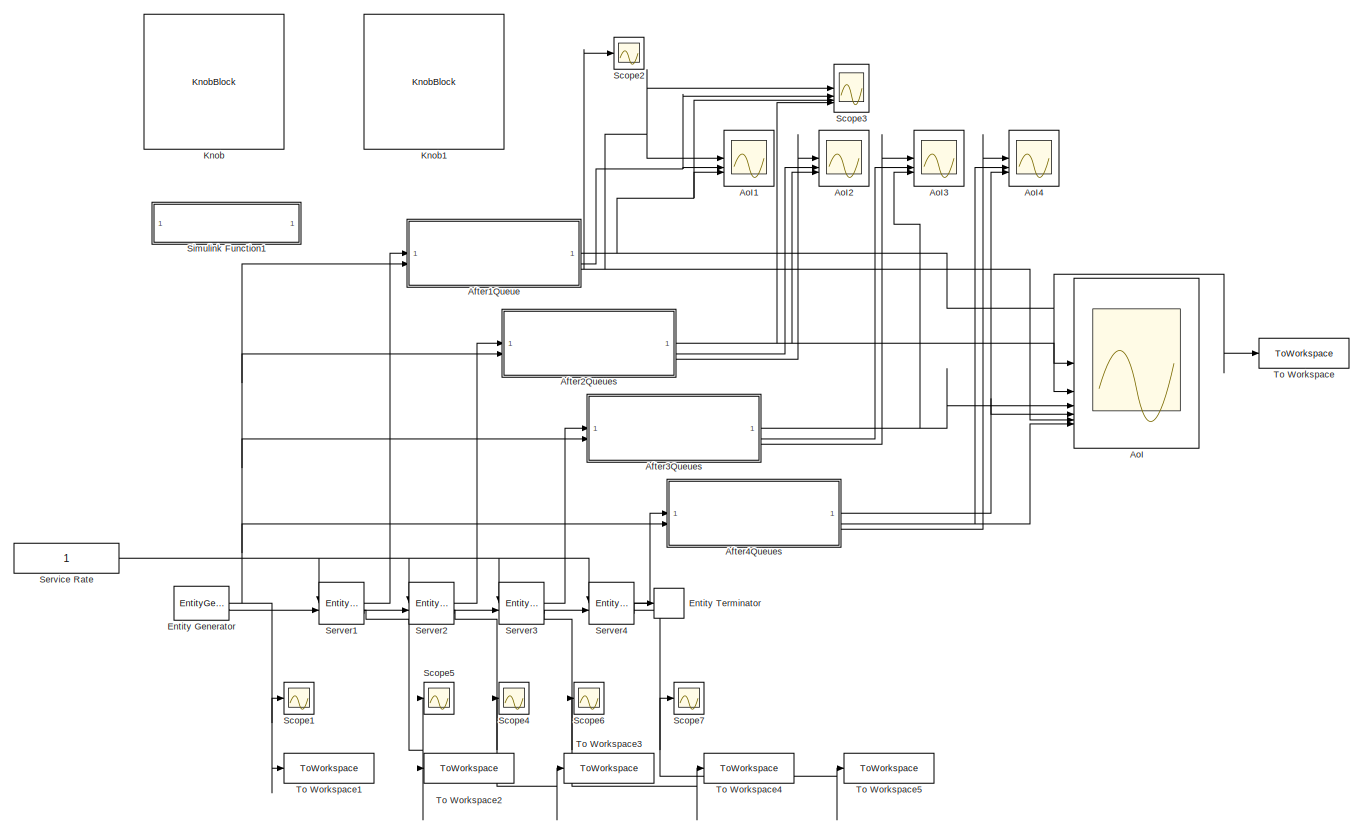
[diagram: root canvas - part 1/2, most of the canvas]
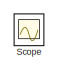
[diagram: root canvas - part 2/2, middle left region]
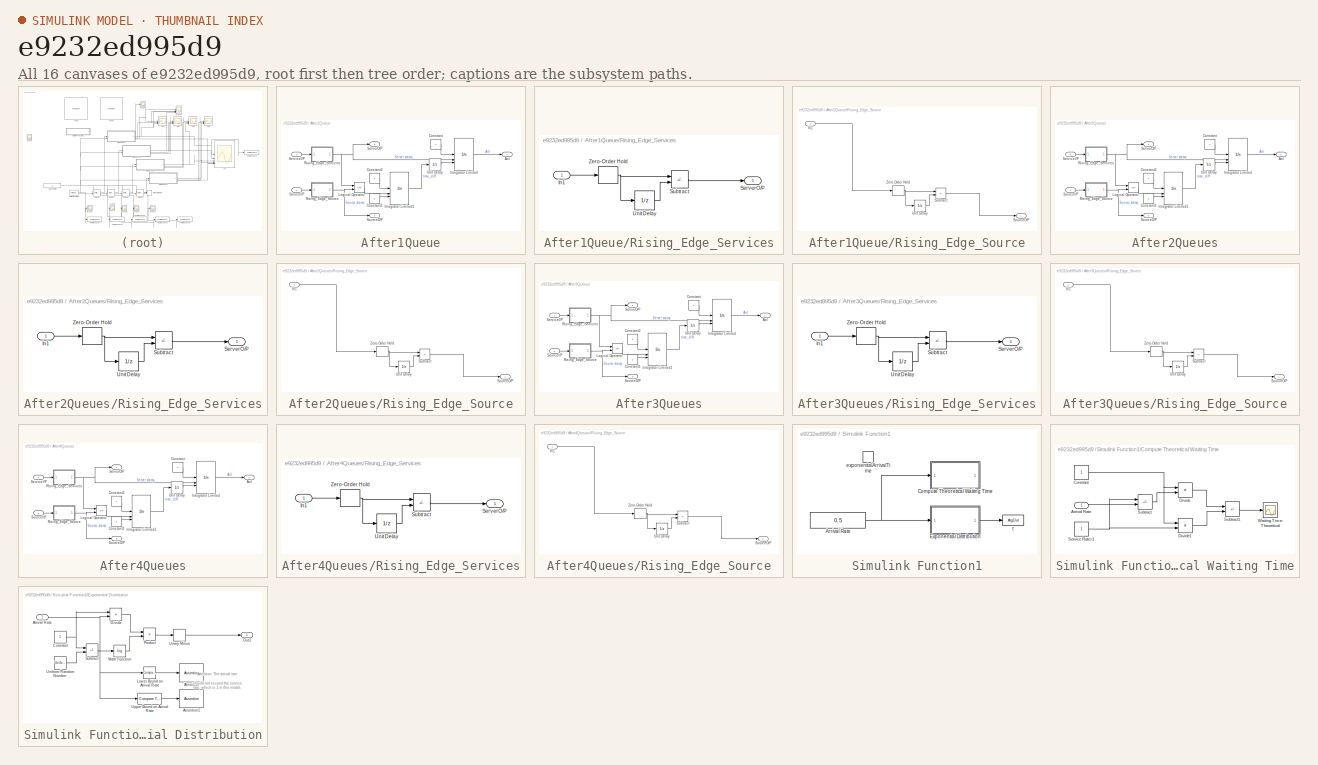
[diagram: thumbnail index - all 16 canvases of the model, root first then tree order]
MODEL slx_e9232ed995d9
KIND model
CONFIG AbsTol = auto
CONFIG EnableMultiTasking = off
CONFIG FixedStep = auto
CONFIG MaxStep = auto
CONFIG MinStep = auto
CONFIG RelTol = 1e-3
CONFIG SampleTimeConstraint = Unconstrained
CONFIG SolverName = VariableStepAuto
CONFIG StartTime = 0.0
CONFIG StopTime = 100
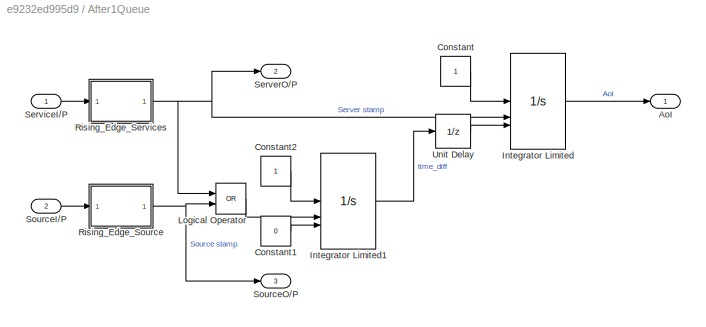
BLOCK [SubSystem] After1Queue
BLOCK [Outport] After1Queue/AoI
BLOCK [Constant] After1Queue/Constant
BLOCK [Constant] After1Queue/Constant1
  Value = 0
BLOCK [Constant] After1Queue/Constant2
BLOCK [Integrator] After1Queue/Integrator Limited
  ExternalReset = rising
  InitialConditionSource = external
  LimitOutput = on
  LowerSaturationLimit = 0
  UpperSaturationLimit = 1000
BLOCK [Integrator] After1Queue/Integrator Limited1
  ExternalReset = rising
  InitialConditionSource = external
  LimitOutput = on
  LowerSaturationLimit = 0
  UpperSaturationLimit = 1000
BLOCK [Logic] After1Queue/Logical Operator
  AllPortsSameDT = off
  Operator = OR
  OutDataTypeStr = boolean
BLOCK [SubSystem] After1Queue/Rising_Edge_Services
BLOCK [Inport] After1Queue/Rising_Edge_Services/In1
BLOCK [Outport] After1Queue/Rising_Edge_Services/ServerO//P
  VectorParamsAs1DForOutWhenUnconnected = off
BLOCK [Sum] After1Queue/Rising_Edge_Services/Subtract
  IconShape = rectangular
  Inputs = +-
BLOCK [UnitDelay] After1Queue/Rising_Edge_Services/Unit Delay
  HasFrameUpgradeWarning = on
  SampleTime = -1
BLOCK [ZeroOrderHold] After1Queue/Rising_Edge_Services/Zero-Order Hold
  SampleTime = 0.005
BLOCK [SubSystem] After1Queue/Rising_Edge_Source
BLOCK [Inport] After1Queue/Rising_Edge_Source/In1
BLOCK [Outport] After1Queue/Rising_Edge_Source/SourceO//P
  VectorParamsAs1DForOutWhenUnconnected = off
BLOCK [Sum] After1Queue/Rising_Edge_Source/Subtract
  IconShape = rectangular
  Inputs = +-
BLOCK [UnitDelay] After1Queue/Rising_Edge_Source/Unit Delay
  HasFrameUpgradeWarning = on
  SampleTime = -1
BLOCK [ZeroOrderHold] After1Queue/Rising_Edge_Source/Zero-Order Hold
  SampleTime = 0.005
BLOCK [Outport] After1Queue/ServerO//P
  Port = 2
BLOCK [Inport] After1Queue/ServiceI//P
BLOCK [Inport] After1Queue/SourceI//P
  Port = 2
BLOCK [Outport] After1Queue/SourceO//P
  Port = 3
BLOCK [UnitDelay] After1Queue/Unit Delay
  HasFrameUpgradeWarning = on
  SampleTime = -1
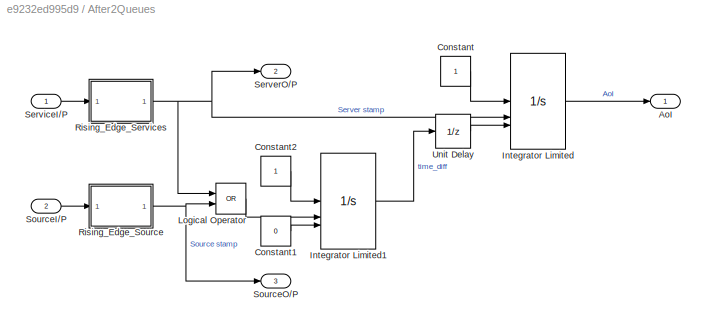
BLOCK [SubSystem] After2Queues
BLOCK [Outport] After2Queues/AoI
BLOCK [Constant] After2Queues/Constant
BLOCK [Constant] After2Queues/Constant1
  Value = 0
BLOCK [Constant] After2Queues/Constant2
BLOCK [Integrator] After2Queues/Integrator Limited
  ExternalReset = rising
  InitialConditionSource = external
  LimitOutput = on
  LowerSaturationLimit = 0
  UpperSaturationLimit = 1000
BLOCK [Integrator] After2Queues/Integrator Limited1
  ExternalReset = rising
  InitialConditionSource = external
  LimitOutput = on
  LowerSaturationLimit = 0
  UpperSaturationLimit = 1000
BLOCK [Logic] After2Queues/Logical Operator
  AllPortsSameDT = off
  Operator = OR
  OutDataTypeStr = boolean
BLOCK [SubSystem] After2Queues/Rising_Edge_Services
BLOCK [Inport] After2Queues/Rising_Edge_Services/In1
BLOCK [Outport] After2Queues/Rising_Edge_Services/ServerO//P
  VectorParamsAs1DForOutWhenUnconnected = off
BLOCK [Sum] After2Queues/Rising_Edge_Services/Subtract
  IconShape = rectangular
  Inputs = +-
BLOCK [UnitDelay] After2Queues/Rising_Edge_Services/Unit Delay
  HasFrameUpgradeWarning = on
  SampleTime = -1
BLOCK [ZeroOrderHold] After2Queues/Rising_Edge_Services/Zero-Order Hold
  SampleTime = 0.005
BLOCK [SubSystem] After2Queues/Rising_Edge_Source
BLOCK [Inport] After2Queues/Rising_Edge_Source/In1
BLOCK [Outport] After2Queues/Rising_Edge_Source/SourceO//P
  VectorParamsAs1DForOutWhenUnconnected = off
BLOCK [Sum] After2Queues/Rising_Edge_Source/Subtract
  IconShape = rectangular
  Inputs = +-
BLOCK [UnitDelay] After2Queues/Rising_Edge_Source/Unit Delay
  HasFrameUpgradeWarning = on
  SampleTime = -1
BLOCK [ZeroOrderHold] After2Queues/Rising_Edge_Source/Zero-Order Hold
  SampleTime = 0.005
BLOCK [Outport] After2Queues/ServerO//P
  Port = 2
BLOCK [Inport] After2Queues/ServiceI//P
BLOCK [Inport] After2Queues/SourceI//P
  Port = 2
BLOCK [Outport] After2Queues/SourceO//P
  Port = 3
BLOCK [UnitDelay] After2Queues/Unit Delay
  HasFrameUpgradeWarning = on
  SampleTime = -1
BLOCK [SubSystem] After3Queues
BLOCK [Outport] After3Queues/AoI
BLOCK [Constant] After3Queues/Constant
BLOCK [Constant] After3Queues/Constant1
  Value = 0
BLOCK [Constant] After3Queues/Constant2
BLOCK [Integrator] After3Queues/Integrator Limited
  ExternalReset = rising
  InitialConditionSource = external
  LimitOutput = on
  LowerSaturationLimit = 0
  UpperSaturationLimit = 1000
BLOCK [Integrator] After3Queues/Integrator Limited1
  ExternalReset = rising
  InitialConditionSource = external
  LimitOutput = on
  LowerSaturationLimit = 0
  UpperSaturationLimit = 1000
BLOCK [Logic] After3Queues/Logical Operator
  AllPortsSameDT = off
  Operator = OR
  OutDataTypeStr = boolean
BLOCK [SubSystem] After3Queues/Rising_Edge_Services
BLOCK [Inport] After3Queues/Rising_Edge_Services/In1
BLOCK [Outport] After3Queues/Rising_Edge_Services/ServerO//P
  VectorParamsAs1DForOutWhenUnconnected = off
BLOCK [Sum] After3Queues/Rising_Edge_Services/Subtract
  IconShape = rectangular
  Inputs = +-
BLOCK [UnitDelay] After3Queues/Rising_Edge_Services/Unit Delay
  HasFrameUpgradeWarning = on
  SampleTime = -1
BLOCK [ZeroOrderHold] After3Queues/Rising_Edge_Services/Zero-Order Hold
  SampleTime = 0.005
BLOCK [SubSystem] After3Queues/Rising_Edge_Source
BLOCK [Inport] After3Queues/Rising_Edge_Source/In1
BLOCK [Outport] After3Queues/Rising_Edge_Source/SourceO//P
  VectorParamsAs1DForOutWhenUnconnected = off
BLOCK [Sum] After3Queues/Rising_Edge_Source/Subtract
  IconShape = rectangular
  Inputs = +-
BLOCK [UnitDelay] After3Queues/Rising_Edge_Source/Unit Delay
  HasFrameUpgradeWarning = on
  SampleTime = -1
BLOCK [ZeroOrderHold] After3Queues/Rising_Edge_Source/Zero-Order Hold
  SampleTime = 0.005
BLOCK [Outport] After3Queues/ServerO//P
  Port = 2
BLOCK [Inport] After3Queues/ServiceI//P
BLOCK [Inport] After3Queues/SourceI//P
  Port = 2
BLOCK [Outport] After3Queues/SourceO//P
  Port = 3
BLOCK [UnitDelay] After3Queues/Unit Delay
  HasFrameUpgradeWarning = on
  SampleTime = -1
BLOCK [SubSystem] After4Queues
BLOCK [Outport] After4Queues/AoI
BLOCK [Constant] After4Queues/Constant
BLOCK [Constant] After4Queues/Constant1
  Value = 0
BLOCK [Constant] After4Queues/Constant2
BLOCK [Integrator] After4Queues/Integrator Limited
  ExternalReset = rising
  InitialConditionSource = external
  LimitOutput = on
  LowerSaturationLimit = 0
  UpperSaturationLimit = 1000
BLOCK [Integrator] After4Queues/Integrator Limited1
  ExternalReset = rising
  InitialConditionSource = external
  LimitOutput = on
  LowerSaturationLimit = 0
  UpperSaturationLimit = 1000
BLOCK [Logic] After4Queues/Logical Operator
  AllPortsSameDT = off
  Operator = OR
  OutDataTypeStr = boolean
BLOCK [SubSystem] After4Queues/Rising_Edge_Services
BLOCK [Inport] After4Queues/Rising_Edge_Services/In1
BLOCK [Outport] After4Queues/Rising_Edge_Services/ServerO//P
  VectorParamsAs1DForOutWhenUnconnected = off
BLOCK [Sum] After4Queues/Rising_Edge_Services/Subtract
  IconShape = rectangular
  Inputs = +-
BLOCK [UnitDelay] After4Queues/Rising_Edge_Services/Unit Delay
  HasFrameUpgradeWarning = on
  SampleTime = -1
BLOCK [ZeroOrderHold] After4Queues/Rising_Edge_Services/Zero-Order Hold
  SampleTime = 0.005
BLOCK [SubSystem] After4Queues/Rising_Edge_Source
BLOCK [Inport] After4Queues/Rising_Edge_Source/In1
BLOCK [Outport] After4Queues/Rising_Edge_Source/SourceO//P
  VectorParamsAs1DForOutWhenUnconnected = off
BLOCK [Sum] After4Queues/Rising_Edge_Source/Subtract
  IconShape = rectangular
  Inputs = +-
BLOCK [UnitDelay] After4Queues/Rising_Edge_Source/Unit Delay
  HasFrameUpgradeWarning = on
  SampleTime = -1
BLOCK [ZeroOrderHold] After4Queues/Rising_Edge_Source/Zero-Order Hold
  SampleTime = 0.005
BLOCK [Outport] After4Queues/ServerO//P
  Port = 2
BLOCK [Inport] After4Queues/ServiceI//P
BLOCK [Inport] After4Queues/SourceI//P
  Port = 2
BLOCK [Outport] After4Queues/SourceO//P
  Port = 3
BLOCK [UnitDelay] After4Queues/Unit Delay
  HasFrameUpgradeWarning = on
  SampleTime = -1
BLOCK [Scope] AoI
  Floating = off
  NumInputPorts = 6
  ScopeSpecificationString = Simulink.scopes.TimeScopeBlockCfg('CurrentConfiguration', extmgr.ConfigurationSet(extmgr.Configuration('Core','General UI',true,'ShowStatusbar',false),extmgr.Configuration('Core','Source UI',true),extmgr.Configuration('Sources','WiredSimulink',true,'DataLoggingVariableName','ScopeData1'),extmgr.Configuration('Visuals','Time Domain',true,'SerializedDisplays',{struct('MinYLimReal','-1.31074','MaxYLi...<+2108ch>
BLOCK [Scope] AoI1
  Floating = off
  NumInputPorts = 3
  ScopeSpecificationString = Simulink.scopes.TimeScopeBlockCfg('CurrentConfiguration', extmgr.ConfigurationSet(extmgr.Configuration('Core','General UI',true,'ShowStatusbar',false),extmgr.Configuration('Core','Source UI',true),extmgr.Configuration('Sources','WiredSimulink',true,'DataLoggingVariableName','ScopeData2'),extmgr.Configuration('Visuals','Time Domain',true,'SerializedDisplays',{struct('MinYLimReal','-2.32078','MaxYLi...<+1647ch>
BLOCK [Scope] AoI2
  Floating = off
  NumInputPorts = 3
  ScopeSpecificationString = Simulink.scopes.TimeScopeBlockCfg('CurrentConfiguration', extmgr.ConfigurationSet(extmgr.Configuration('Core','General UI',true,'ShowStatusbar',false),extmgr.Configuration('Core','Source UI',true),extmgr.Configuration('Sources','WiredSimulink',true,'DataLoggingVariableName','ScopeData3'),extmgr.Configuration('Visuals','Time Domain',true,'SerializedDisplays',{struct('MinYLimReal','-2.32078','MaxYLi...<+1671ch>
BLOCK [Scope] AoI3
  Floating = off
  NumInputPorts = 3
  ScopeSpecificationString = Simulink.scopes.TimeScopeBlockCfg('CurrentConfiguration', extmgr.ConfigurationSet(extmgr.Configuration('Core','General UI',true,'ShowStatusbar',false),extmgr.Configuration('Core','Source UI',true),extmgr.Configuration('Sources','WiredSimulink',true,'DataLoggingVariableName','ScopeData4'),extmgr.Configuration('Visuals','Time Domain',true,'SerializedDisplays',{struct('MinYLimReal','-2.32078','MaxYLi...<+1671ch>
BLOCK [Scope] AoI4
  Floating = off
  NumInputPorts = 3
  ScopeSpecificationString = Simulink.scopes.TimeScopeBlockCfg('CurrentConfiguration', extmgr.ConfigurationSet(extmgr.Configuration('Core','General UI',true,'ShowStatusbar',false),extmgr.Configuration('Core','Source UI',true),extmgr.Configuration('Sources','WiredSimulink',true,'DataLoggingVariableName','ScopeData5'),extmgr.Configuration('Visuals','Time Domain',true,'SerializedDisplays',{struct('MinYLimReal','-2.32078','MaxYLi...<+1726ch>
BLOCK [EntityGenerator] Entity Generator
  AttributeInitialValue = 0
  EntityType = Structured
  EntityTypeName = Entity
  GenerateEntityAtSimulationStart = off
  IntergenerationTimeAction = T = exponentialArrivalTime;   % fixed intergeneration time\nN = 10000;   % number of entities generated\npersistent nr;\nif isempty(nr)\n  nr = 1;\nend\n\nif nr <= N\n  dt = T;\nelse\n  dt = inf;\nend\nnr = nr + 1;
  NumberEntitiesDeparted = on
  OutputPortMap = o0,o3
  OutputPortMessageModes = n,m
  Period = 7
  TimeSource = MATLAB action
BLOCK [EntityTerminator] Entity Terminator
  InputPortMap = u0
  InputPortMessageModes = m
BLOCK [KnobBlock] Knob
  ScaleMax = 0.99
  ScaleMin = 0.10000000000000001
BLOCK [KnobBlock] Knob1
  ScaleMax = 1
  ScaleMin = 0.10000000000000001
BLOCK [Scope] Scope
  Floating = off
  IOType = viewer
  NumInputPorts = 1
  ScopeSpecificationString = Simulink.scopes.TimeScopeBlockCfg('CurrentConfiguration', extmgr.ConfigurationSet(extmgr.Configuration('Core','General UI',true),extmgr.Configuration('Core','Source UI',true),extmgr.Configuration('Sources','WiredSimulink',true,'DataLoggingVariableName','ScopeData1'),extmgr.Configuration('Visuals','Time Domain',true,'SerializedDisplays',{struct('MinYLimReal','-10.00000','MaxYLimReal','10.00000','YL...<+1389ch>
BLOCK [Scope] Scope1
  Floating = off
  NumInputPorts = 1
  ScopeSpecificationString = Simulink.scopes.TimeScopeBlockCfg('CurrentConfiguration', extmgr.ConfigurationSet(extmgr.Configuration('Core','General UI',true),extmgr.Configuration('Core','Source UI',true),extmgr.Configuration('Sources','WiredSimulink',true,'DataLoggingVariableName','ScopeData1'),extmgr.Configuration('Visuals','Time Domain',true,'SerializedDisplays',{struct('MinYLimReal','-123.875','MaxYLimReal','1124.875','YLa...<+1464ch>
BLOCK [Scope] Scope2
  Floating = off
  NumInputPorts = 1
  ScopeSpecificationString = Simulink.scopes.TimeScopeBlockCfg('CurrentConfiguration', extmgr.ConfigurationSet(extmgr.Configuration('Core','General UI',true),extmgr.Configuration('Core','Source UI',true),extmgr.Configuration('Sources','WiredSimulink',true,'DataLoggingVariableName','ScopeData1'),extmgr.Configuration('Visuals','Time Domain',true,'SerializedDisplays',{struct('MinYLimReal','-0.95685','MaxYLimReal','8.61166','YLab...<+1445ch>
BLOCK [Scope] Scope3
  Floating = off
  NumInputPorts = 4
  ScopeSpecificationString = Simulink.scopes.TimeScopeBlockCfg('CurrentConfiguration', extmgr.ConfigurationSet(extmgr.Configuration('Core','General UI',true),extmgr.Configuration('Core','Source UI',true),extmgr.Configuration('Sources','WiredSimulink',true,'DataLoggingVariableName','ScopeData1'),extmgr.Configuration('Visuals','Time Domain',true,'SerializedDisplays',{struct('MinYLimReal','-5.76438','MaxYLimReal','51.87938','YLa...<+1552ch>
BLOCK [Scope] Scope4
  Floating = off
  NumInputPorts = 1
  ScopeSpecificationString = Simulink.scopes.TimeScopeBlockCfg('CurrentConfiguration', extmgr.ConfigurationSet(extmgr.Configuration('Core','General UI',true),extmgr.Configuration('Core','Source UI',true),extmgr.Configuration('Sources','WiredSimulink',true,'DataLoggingVariableName','ScopeData1'),extmgr.Configuration('Visuals','Time Domain',true,'SerializedDisplays',{struct('MinYLimReal','-0.125','MaxYLimReal','1.125','YLabelRe...<+1431ch>
BLOCK [Scope] Scope5
  Floating = off
  NumInputPorts = 1
  ScopeSpecificationString = Simulink.scopes.TimeScopeBlockCfg('CurrentConfiguration', extmgr.ConfigurationSet(extmgr.Configuration('Core','General UI',true),extmgr.Configuration('Core','Source UI',true),extmgr.Configuration('Sources','WiredSimulink',true,'DataLoggingVariableName','ScopeData2'),extmgr.Configuration('Visuals','Time Domain',true,'SerializedDisplays',{struct('MinYLimReal','-0.125','MaxYLimReal','1.125','YLabelRe...<+1437ch>
BLOCK [Scope] Scope6
  Floating = off
  NumInputPorts = 1
  ScopeSpecificationString = Simulink.scopes.TimeScopeBlockCfg('CurrentConfiguration', extmgr.ConfigurationSet(extmgr.Configuration('Core','General UI',true),extmgr.Configuration('Core','Source UI',true),extmgr.Configuration('Sources','WiredSimulink',true,'DataLoggingVariableName','ScopeData3'),extmgr.Configuration('Visuals','Time Domain',true,'SerializedDisplays',{struct('MinYLimReal','-0.95685','MaxYLimReal','8.61166','YLab...<+1431ch>
BLOCK [Scope] Scope7
  Floating = off
  NumInputPorts = 1
  ScopeSpecificationString = Simulink.scopes.TimeScopeBlockCfg('CurrentConfiguration', extmgr.ConfigurationSet(extmgr.Configuration('Core','General UI',true),extmgr.Configuration('Core','Source UI',true),extmgr.Configuration('Sources','WiredSimulink',true,'DataLoggingVariableName','ScopeData4'),extmgr.Configuration('Visuals','Time Domain',true,'SerializedDisplays',{struct('MinYLimReal','-0.125','MaxYLimReal','1.125','YLabelRe...<+1384ch>
BLOCK [EntityServer] Server1
  Capacity = 1
  InputPortMap = u0,u2
  InputPortMessageModes = n,m
  NumberEntitiesDeparted = on
  NumberEntitiesInBlock = on
  OutputPortMap = o0,o1,o9
  OutputPortMessageModes = n,n,m
  ServiceTimeAction = persistent rngInit;\nif isempty(rngInit)\n    seed = 12345;\n    rng(seed);\n    rngInit = true;\nend\n\n% Pattern: Exponential distribution\nmu = 1;\ndt = -mu * log(1 - rand());
  ServiceTimeSource = Signal port
BLOCK [EntityServer] Server2
  Capacity = 1
  InputPortMap = u0,u2
  InputPortMessageModes = n,m
  NumberEntitiesDeparted = on
  NumberEntitiesInBlock = on
  OutputPortMap = o0,o1,o9
  OutputPortMessageModes = n,n,m
  ServiceTimeAction = persistent rngInit;\nif isempty(rngInit)\n    seed = 12345;\n    rng(seed);\n    rngInit = true;\nend\n\n% Pattern: Exponential distribution\nmu = 1;\ndt = -mu * log(1 - rand());
  ServiceTimeSource = Signal port
BLOCK [EntityServer] Server3
  Capacity = 1
  InputPortMap = u0,u2
  InputPortMessageModes = n,m
  NumberEntitiesDeparted = on
  NumberEntitiesInBlock = on
  OutputPortMap = o0,o1,o9
  OutputPortMessageModes = n,n,m
  ServiceTimeAction = persistent rngInit;\nif isempty(rngInit)\n    seed = 12345;\n    rng(seed);\n    rngInit = true;\nend\n\n% Pattern: Exponential distribution\nmu = 1;\ndt = -mu * log(1 - rand());
  ServiceTimeSource = Signal port
BLOCK [EntityServer] Server4
  Capacity = 1
  InputPortMap = u0,u2
  InputPortMessageModes = n,m
  NumberEntitiesDeparted = on
  NumberEntitiesInBlock = on
  OutputPortMap = o0,o1,o9
  OutputPortMessageModes = n,n,m
  ServiceTimeAction = persistent rngInit;\nif isempty(rngInit)\n    seed = 12345;\n    rng(seed);\n    rngInit = true;\nend\n\n% Pattern: Exponential distribution\nmu = 1;\ndt = -mu * log(1 - rand());
  ServiceTimeSource = Signal port
BLOCK [Constant] Service Rate
  SampleTime = -1
BLOCK [SubSystem] Simulink Function1
  TreatAsAtomicUnit = on
BLOCK [Constant] Simulink Function1/Arrival Rate
  SampleTime = -1
  Value = 0.5
BLOCK [SubSystem] Simulink Function1/Compute Theoretical Waiting Time
BLOCK [Inport] Simulink Function1/Compute Theoretical Waiting Time/Arrival Rate
BLOCK [Constant] Simulink Function1/Compute Theoretical Waiting Time/Constant
BLOCK [Product] Simulink Function1/Compute Theoretical Waiting Time/Divide
  Inputs = */
BLOCK [Product] Simulink Function1/Compute Theoretical Waiting Time/Divide1
  Inputs = */
BLOCK [Constant] Simulink Function1/Compute Theoretical Waiting Time/Service Rate=1
BLOCK [Sum] Simulink Function1/Compute Theoretical Waiting Time/Subtract
  IconShape = rectangular
  Inputs = +-
BLOCK [Sum] Simulink Function1/Compute Theoretical Waiting Time/Subtract1
  IconShape = rectangular
  Inputs = +-
BLOCK [Scope] Simulink Function1/Compute Theoretical Waiting Time/Waiting Time: Theoretical
  Floating = off
  NumInputPorts = 1
  ScopeSpecificationString = Simulink.scopes.TimeScopeBlockCfg('CurrentConfiguration', extmgr.ConfigurationSet(extmgr.Configuration('Core','General UI',true,'ShowMainToolbar',false,'ShowStatusbar',false),extmgr.Configuration('Core','Source UI',true),extmgr.Configuration('Sources','WiredSimulink',true,'DataLoggingVariableName','ScopeData2'),extmgr.Configuration('Visuals','Time Domain',true,'SerializedDisplays',{struct('MinYLim...<+1480ch>
BLOCK [SubSystem] Simulink Function1/Exponential Distribution
BLOCK [Inport] Simulink Function1/Exponential Distribution/Arrival Rate
BLOCK [Assertion] Simulink Function1/Exponential Distribution/Assertion
BLOCK [Assertion] Simulink Function1/Exponential Distribution/Assertion1
BLOCK [Constant] Simulink Function1/Exponential Distribution/Constant
BLOCK [Product] Simulink Function1/Exponential Distribution/Divide
  Inputs = */
BLOCK [Reference] Simulink Function1/Exponential Distribution/Lower Bound on Arrival Rate  REF=simulink/Logic and Bit
Operations/Compare
To Constant
  SourceBlock = simulink/Logic and Bit\nOperations/Compare\nTo Constant
  SourceType = Compare To Constant
BLOCK [Math] Simulink Function1/Exponential Distribution/Math Function
  Operator = log
  SignedPower = on
BLOCK [Outport] Simulink Function1/Exponential Distribution/Out1
  VectorParamsAs1DForOutWhenUnconnected = off
BLOCK [Product] Simulink Function1/Exponential Distribution/Product
  RndMeth = Zero
BLOCK [Sum] Simulink Function1/Exponential Distribution/Subtract
  IconShape = rectangular
  Inputs = +-
BLOCK [UnaryMinus] Simulink Function1/Exponential Distribution/Unary Minus
BLOCK [UniformRandomNumber] Simulink Function1/Exponential Distribution/Uniform Random Number
  Minimum = 0
  Seed = 12345
BLOCK [Reference] Simulink Function1/Exponential Distribution/Upper Bound on Arrival Rate   REF=simulink/Logic and Bit
Operations/Compare
To Constant
  SourceBlock = simulink/Logic and Bit\nOperations/Compare\nTo Constant
  SourceType = Compare To Constant
BLOCK [TriggerPort] Simulink Function1/exponentialArrivalTime
  FunctionName = exponentialArrivalTime
  IsSimulinkFunction = on
  StatesWhenEnabling = held
  TriggerType = function-call
  VariantControl = Variant
BLOCK [ArgOut] Simulink Function1/t
  ArgumentName = t
  DisableCoverage = on
BLOCK [ToWorkspace] To Workspace
  MaxDataPoints = 2
  SampleTime = -1
  Save2DSignal = 2-D array (concatenate along first dimension)
  VariableName = simout
BLOCK [ToWorkspace] To Workspace1
  FixptAsFi = on
  MaxDataPoints = inf
  SampleTime = -1
  SaveFormat = Timeseries
  VariableName = Arrival
BLOCK [ToWorkspace] To Workspace2
  FixptAsFi = on
  MaxDataPoints = inf
  SampleTime = -1
  Save2DSignal = 2-D array (concatenate along first dimension)
  SaveFormat = Timeseries
  VariableName = Server1
BLOCK [ToWorkspace] To Workspace3
  FixptAsFi = on
  MaxDataPoints = inf
  SampleTime = -1
  Save2DSignal = 2-D array (concatenate along first dimension)
  SaveFormat = Timeseries
  VariableName = Server2
BLOCK [ToWorkspace] To Workspace4
  FixptAsFi = on
  MaxDataPoints = inf
  SampleTime = -1
  Save2DSignal = 2-D array (concatenate along first dimension)
  SaveFormat = Timeseries
  VariableName = Server3
BLOCK [ToWorkspace] To Workspace5
  FixptAsFi = on
  MaxDataPoints = inf
  SampleTime = -1
  Save2DSignal = 2-D array (concatenate along first dimension)
  SaveFormat = Timeseries
  VariableName = Server4
ANNOTATION Simulink Function1/Exponential Distribution: Attention: The arrival rate should not exceed the service rate, which is 1 in this model.
LINE After1Queue/Constant1:1 -> After1Queue/Integrator Limited1:3
LINE After1Queue/Constant2:1 -> After1Queue/Integrator Limited1:1
LINE After1Queue/Constant:1 -> After1Queue/Integrator Limited:1
LINE After1Queue/Integrator Limited1:1 -> After1Queue/Unit Delay:1
LINE After1Queue/Integrator Limited:1 -> After1Queue/AoI:1
LINE After1Queue/Logical Operator:1 -> After1Queue/Integrator Limited1:2
LINE After1Queue/Rising_Edge_Services/In1:1 -> After1Queue/Rising_Edge_Services/Zero-Order Hold:1
LINE After1Queue/Rising_Edge_Services/Subtract:1 -> After1Queue/Rising_Edge_Services/ServerO//P:1
LINE After1Queue/Rising_Edge_Services/Unit Delay:1 -> After1Queue/Rising_Edge_Services/Subtract:2
NET After1Queue/Rising_Edge_Services/Zero-Order Hold:1 -> After1Queue/Rising_Edge_Services/Subtract:1, After1Queue/Rising_Edge_Services/Unit Delay:1
NET After1Queue/Rising_Edge_Services:1 -> After1Queue/Integrator Limited:2, After1Queue/Logical Operator:1, After1Queue/ServerO//P:1
LINE After1Queue/Rising_Edge_Source/In1:1 -> After1Queue/Rising_Edge_Source/Zero-Order Hold:1
LINE After1Queue/Rising_Edge_Source/Subtract:1 -> After1Queue/Rising_Edge_Source/SourceO//P:1
LINE After1Queue/Rising_Edge_Source/Unit Delay:1 -> After1Queue/Rising_Edge_Source/Subtract:2
NET After1Queue/Rising_Edge_Source/Zero-Order Hold:1 -> After1Queue/Rising_Edge_Source/Subtract:1, After1Queue/Rising_Edge_Source/Unit Delay:1
NET After1Queue/Rising_Edge_Source:1 -> After1Queue/Logical Operator:2, After1Queue/SourceO//P:1
LINE After1Queue/ServiceI//P:1 -> After1Queue/Rising_Edge_Services:1
LINE After1Queue/SourceI//P:1 -> After1Queue/Rising_Edge_Source:1
LINE After1Queue/Unit Delay:1 -> After1Queue/Integrator Limited:3
NET After1Queue:1 -> AoI1:3, AoI:1, Scope3:3, To Workspace:1
NET After1Queue:2 -> AoI1:2, Scope3:2
NET After1Queue:3 -> AoI1:1, AoI:5, Scope2:1, Scope3:1
LINE After2Queues/Constant1:1 -> After2Queues/Integrator Limited1:3
LINE After2Queues/Constant2:1 -> After2Queues/Integrator Limited1:1
LINE After2Queues/Constant:1 -> After2Queues/Integrator Limited:1
LINE After2Queues/Integrator Limited1:1 -> After2Queues/Unit Delay:1
LINE After2Queues/Integrator Limited:1 -> After2Queues/AoI:1
LINE After2Queues/Logical Operator:1 -> After2Queues/Integrator Limited1:2
LINE After2Queues/Rising_Edge_Services/In1:1 -> After2Queues/Rising_Edge_Services/Zero-Order Hold:1
LINE After2Queues/Rising_Edge_Services/Subtract:1 -> After2Queues/Rising_Edge_Services/ServerO//P:1
LINE After2Queues/Rising_Edge_Services/Unit Delay:1 -> After2Queues/Rising_Edge_Services/Subtract:2
NET After2Queues/Rising_Edge_Services/Zero-Order Hold:1 -> After2Queues/Rising_Edge_Services/Subtract:1, After2Queues/Rising_Edge_Services/Unit Delay:1
NET After2Queues/Rising_Edge_Services:1 -> After2Queues/Integrator Limited:2, After2Queues/Logical Operator:1, After2Queues/ServerO//P:1
LINE After2Queues/Rising_Edge_Source/In1:1 -> After2Queues/Rising_Edge_Source/Zero-Order Hold:1
LINE After2Queues/Rising_Edge_Source/Subtract:1 -> After2Queues/Rising_Edge_Source/SourceO//P:1
LINE After2Queues/Rising_Edge_Source/Unit Delay:1 -> After2Queues/Rising_Edge_Source/Subtract:2
NET After2Queues/Rising_Edge_Source/Zero-Order Hold:1 -> After2Queues/Rising_Edge_Source/Subtract:1, After2Queues/Rising_Edge_Source/Unit Delay:1
NET After2Queues/Rising_Edge_Source:1 -> After2Queues/Logical Operator:2, After2Queues/SourceO//P:1
LINE After2Queues/ServiceI//P:1 -> After2Queues/Rising_Edge_Services:1
LINE After2Queues/SourceI//P:1 -> After2Queues/Rising_Edge_Source:1
LINE After2Queues/Unit Delay:1 -> After2Queues/Integrator Limited:3
NET After2Queues:1 -> AoI2:3, AoI:2, Scope3:4
LINE After2Queues:2 -> AoI2:2
LINE After2Queues:3 -> AoI2:1
LINE After3Queues/Constant1:1 -> After3Queues/Integrator Limited1:3
LINE After3Queues/Constant2:1 -> After3Queues/Integrator Limited1:1
LINE After3Queues/Constant:1 -> After3Queues/Integrator Limited:1
LINE After3Queues/Integrator Limited1:1 -> After3Queues/Unit Delay:1
LINE After3Queues/Integrator Limited:1 -> After3Queues/AoI:1
LINE After3Queues/Logical Operator:1 -> After3Queues/Integrator Limited1:2
LINE After3Queues/Rising_Edge_Services/In1:1 -> After3Queues/Rising_Edge_Services/Zero-Order Hold:1
LINE After3Queues/Rising_Edge_Services/Subtract:1 -> After3Queues/Rising_Edge_Services/ServerO//P:1
LINE After3Queues/Rising_Edge_Services/Unit Delay:1 -> After3Queues/Rising_Edge_Services/Subtract:2
NET After3Queues/Rising_Edge_Services/Zero-Order Hold:1 -> After3Queues/Rising_Edge_Services/Subtract:1, After3Queues/Rising_Edge_Services/Unit Delay:1
NET After3Queues/Rising_Edge_Services:1 -> After3Queues/Integrator Limited:2, After3Queues/Logical Operator:1, After3Queues/ServerO//P:1
LINE After3Queues/Rising_Edge_Source/In1:1 -> After3Queues/Rising_Edge_Source/Zero-Order Hold:1
LINE After3Queues/Rising_Edge_Source/Subtract:1 -> After3Queues/Rising_Edge_Source/SourceO//P:1
LINE After3Queues/Rising_Edge_Source/Unit Delay:1 -> After3Queues/Rising_Edge_Source/Subtract:2
NET After3Queues/Rising_Edge_Source/Zero-Order Hold:1 -> After3Queues/Rising_Edge_Source/Subtract:1, After3Queues/Rising_Edge_Source/Unit Delay:1
NET After3Queues/Rising_Edge_Source:1 -> After3Queues/Logical Operator:2, After3Queues/SourceO//P:1
LINE After3Queues/ServiceI//P:1 -> After3Queues/Rising_Edge_Services:1
LINE After3Queues/SourceI//P:1 -> After3Queues/Rising_Edge_Source:1
LINE After3Queues/Unit Delay:1 -> After3Queues/Integrator Limited:3
NET After3Queues:1 -> AoI3:3, AoI:3
LINE After3Queues:2 -> AoI3:2
LINE After3Queues:3 -> AoI3:1
LINE After4Queues/Constant1:1 -> After4Queues/Integrator Limited1:3
LINE After4Queues/Constant2:1 -> After4Queues/Integrator Limited1:1
LINE After4Queues/Constant:1 -> After4Queues/Integrator Limited:1
LINE After4Queues/Integrator Limited1:1 -> After4Queues/Unit Delay:1
LINE After4Queues/Integrator Limited:1 -> After4Queues/AoI:1
LINE After4Queues/Logical Operator:1 -> After4Queues/Integrator Limited1:2
LINE After4Queues/Rising_Edge_Services/In1:1 -> After4Queues/Rising_Edge_Services/Zero-Order Hold:1
LINE After4Queues/Rising_Edge_Services/Subtract:1 -> After4Queues/Rising_Edge_Services/ServerO//P:1
LINE After4Queues/Rising_Edge_Services/Unit Delay:1 -> After4Queues/Rising_Edge_Services/Subtract:2
NET After4Queues/Rising_Edge_Services/Zero-Order Hold:1 -> After4Queues/Rising_Edge_Services/Subtract:1, After4Queues/Rising_Edge_Services/Unit Delay:1
NET After4Queues/Rising_Edge_Services:1 -> After4Queues/Integrator Limited:2, After4Queues/Logical Operator:1, After4Queues/ServerO//P:1
LINE After4Queues/Rising_Edge_Source/In1:1 -> After4Queues/Rising_Edge_Source/Zero-Order Hold:1
LINE After4Queues/Rising_Edge_Source/Subtract:1 -> After4Queues/Rising_Edge_Source/SourceO//P:1
LINE After4Queues/Rising_Edge_Source/Unit Delay:1 -> After4Queues/Rising_Edge_Source/Subtract:2
NET After4Queues/Rising_Edge_Source/Zero-Order Hold:1 -> After4Queues/Rising_Edge_Source/Subtract:1, After4Queues/Rising_Edge_Source/Unit Delay:1
NET After4Queues/Rising_Edge_Source:1 -> After4Queues/Logical Operator:2, After4Queues/SourceO//P:1
LINE After4Queues/ServiceI//P:1 -> After4Queues/Rising_Edge_Services:1
LINE After4Queues/SourceI//P:1 -> After4Queues/Rising_Edge_Source:1
LINE After4Queues/Unit Delay:1 -> After4Queues/Integrator Limited:3
NET After4Queues:1 -> AoI4:3, AoI:4
NET After4Queues:2 -> AoI4:2, AoI:6
LINE After4Queues:3 -> AoI4:1
NET Entity Generator:1 -> After1Queue:2, After2Queues:2, After3Queues:2, After4Queues:2, Scope1:1, To Workspace1:1
LINE Entity Generator:2 -> Server1:2
LINE Server1:1 -> After1Queue:1
NET Server1:2 -> Scope5:1, To Workspace2:1
LINE Server1:3 -> Server2:2
LINE Server2:1 -> After2Queues:1
NET Server2:2 -> Scope4:1, To Workspace3:1
LINE Server2:3 -> Server3:2
LINE Server3:1 -> After3Queues:1
NET Server3:2 -> Scope6:1, To Workspace4:1
LINE Server3:3 -> Server4:2
LINE Server4:1 -> After4Queues:1
NET Server4:2 -> Scope7:1, To Workspace5:1
LINE Server4:3 -> Entity Terminator:1
NET Service Rate:1 -> Server1:1, Server2:1, Server3:1, Server4:1
NET Simulink Function1/Arrival Rate:1 -> Simulink Function1/Compute Theoretical Waiting Time:1, Simulink Function1/Exponential Distribution:1
LINE Simulink Function1/Compute Theoretical Waiting Time/Arrival Rate:1 -> Simulink Function1/Compute Theoretical Waiting Time/Subtract:2
NET Simulink Function1/Compute Theoretical Waiting Time/Constant:1 -> Simulink Function1/Compute Theoretical Waiting Time/Divide1:1, Simulink Function1/Compute Theoretical Waiting Time/Divide:1
LINE Simulink Function1/Compute Theoretical Waiting Time/Divide1:1 -> Simulink Function1/Compute Theoretical Waiting Time/Subtract1:2
LINE Simulink Function1/Compute Theoretical Waiting Time/Divide:1 -> Simulink Function1/Compute Theoretical Waiting Time/Subtract1:1
NET Simulink Function1/Compute Theoretical Waiting Time/Service Rate=1:1 -> Simulink Function1/Compute Theoretical Waiting Time/Divide1:2, Simulink Function1/Compute Theoretical Waiting Time/Subtract:1
LINE Simulink Function1/Compute Theoretical Waiting Time/Subtract1:1 -> Simulink Function1/Compute Theoretical Waiting Time/Waiting Time: Theoretical:1
LINE Simulink Function1/Compute Theoretical Waiting Time/Subtract:1 -> Simulink Function1/Compute Theoretical Waiting Time/Divide:2
NET Simulink Function1/Exponential Distribution/Arrival Rate:1 -> Simulink Function1/Exponential Distribution/Divide:2, Simulink Function1/Exponential Distribution/Lower Bound on Arrival Rate:1, Simulink Function1/Exponential Distribution/Upper Bound on Arrival Rate :1
NET Simulink Function1/Exponential Distribution/Constant:1 -> Simulink Function1/Exponential Distribution/Divide:1, Simulink Function1/Exponential Distribution/Subtract:1
LINE Simulink Function1/Exponential Distribution/Divide:1 -> Simulink Function1/Exponential Distribution/Product:1
LINE Simulink Function1/Exponential Distribution/Lower Bound on Arrival Rate:1 -> Simulink Function1/Exponential Distribution/Assertion:1
LINE Simulink Function1/Exponential Distribution/Math Function:1 -> Simulink Function1/Exponential Distribution/Product:2
LINE Simulink Function1/Exponential Distribution/Product:1 -> Simulink Function1/Exponential Distribution/Unary Minus:1
LINE Simulink Function1/Exponential Distribution/Subtract:1 -> Simulink Function1/Exponential Distribution/Math Function:1
LINE Simulink Function1/Exponential Distribution/Unary Minus:1 -> Simulink Function1/Exponential Distribution/Out1:1
LINE Simulink Function1/Exponential Distribution/Uniform Random Number:1 -> Simulink Function1/Exponential Distribution/Subtract:2
LINE Simulink Function1/Exponential Distribution/Upper Bound on Arrival Rate :1 -> Simulink Function1/Exponential Distribution/Assertion1:1
LINE Simulink Function1/Exponential Distribution:1 -> Simulink Function1/t:1
note: NET lines group one-source signal fan-out (src -> all destinations, sorted); 1:1 wires keep LINE
